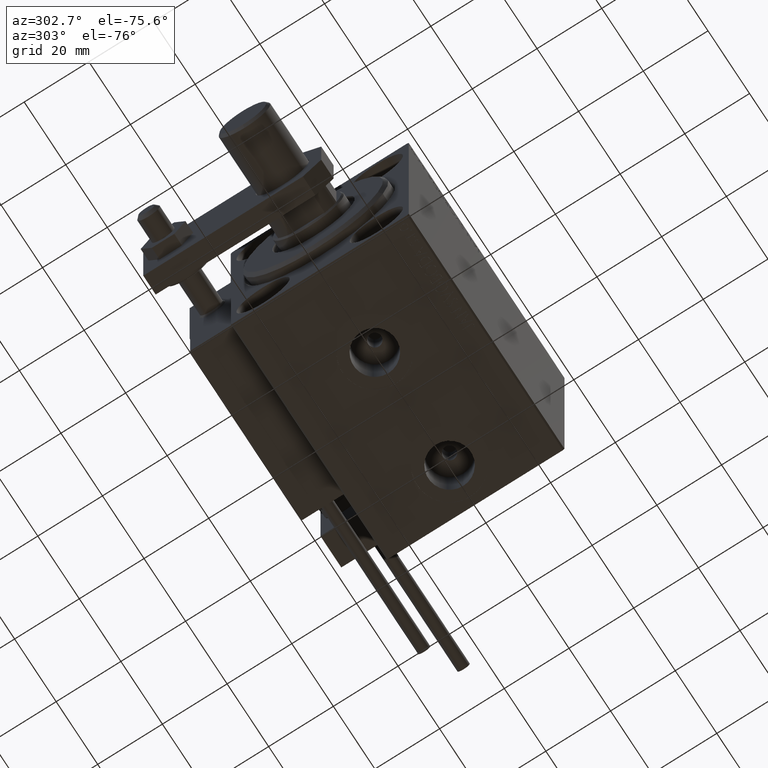
[diagram: clean part render]
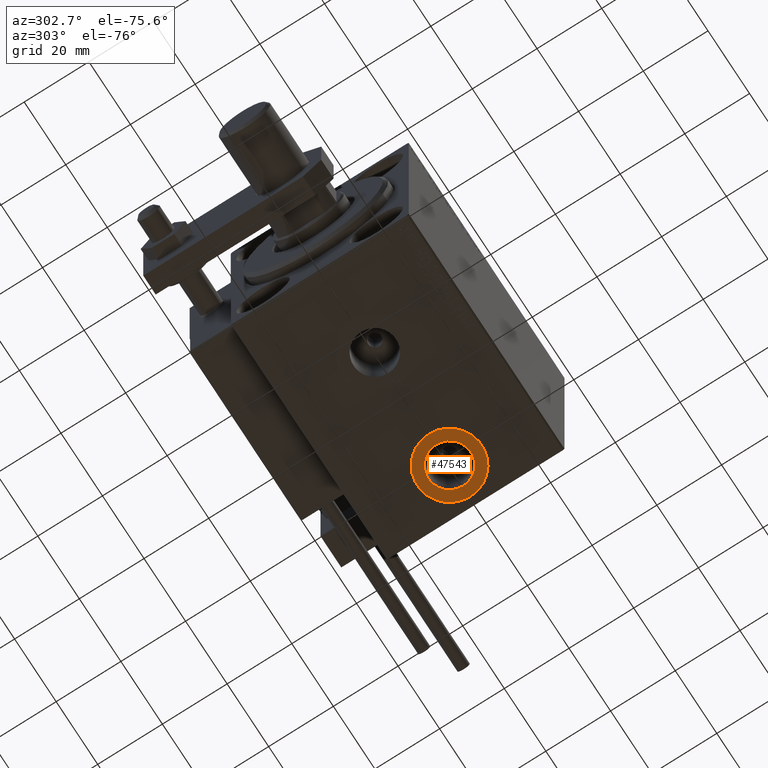
[diagram: same view with one face highlighted and labeled with its STEP entity id]
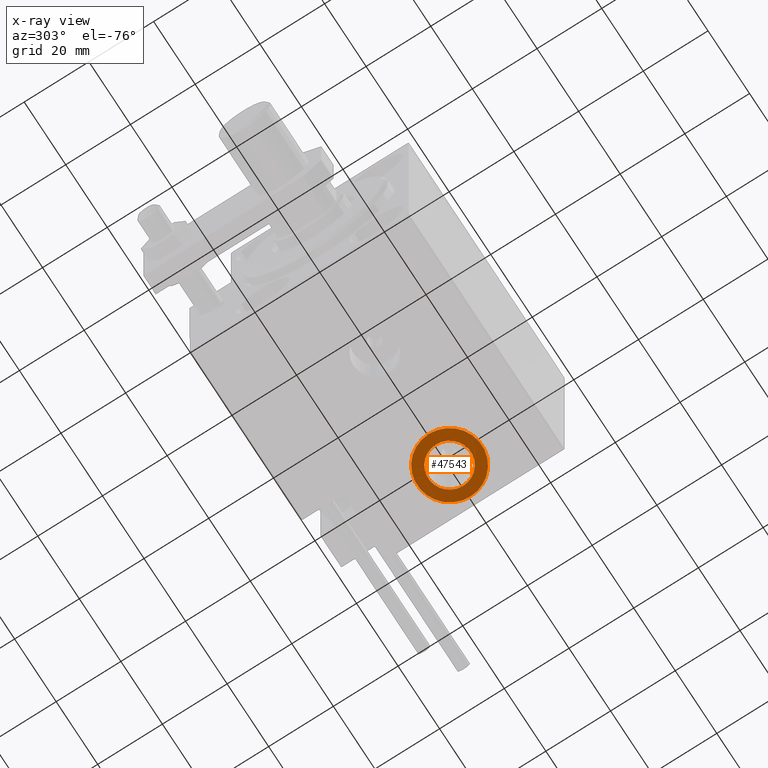
[diagram: x-ray of the same camera — body ghosted, the highlighted face saturated]
A machine part, auxiliary view. The second image highlights one B-rep face of the part: STEP entity #47543.
The next image is the same camera in x-ray: the body ghosted, the highlighted face saturated — about 0% of this face is hidden behind the body in this view.
In plain terms, the highlighted planar face has unit normal (0, 0, -1).
Its self-contained STEP definition (entity closure, byte-faithful):
#3450 = EDGE_LOOP ( 'NONE', ( #16260, #11096 ) ) ;
#7136 = DIRECTION ( 'NONE',  ( 0.000000000000000000, 0.000000000000000000, -1.000000000000000000 ) ) ;
#8334 = CIRCLE ( 'NONE', #10764, 10.00000000000000178 ) ;
#9057 = EDGE_CURVE ( 'NONE', #13284, #36991, #26329, .T. ) ;
#9872 = CARTESIAN_POINT ( 'NONE',  ( 62.49999999999999289, -7.523326685254106813E-15, -37.39999999999999858 ) ) ;
#10722 = EDGE_CURVE ( 'NONE', #28546, #31398, #8334, .T. ) ;
#10764 = AXIS2_PLACEMENT_3D ( 'NONE', #36490, #17199, #48036 ) ;
#10788 = ORIENTED_EDGE ( 'NONE', *, *, #9057, .F. ) ;
#10977 = PLANE ( 'NONE',  #50452 ) ;
#11096 = ORIENTED_EDGE ( 'NONE', *, *, #10722, .T. ) ;
#13284 = VERTEX_POINT ( 'NONE', #35842 ) ;
#14188 = CARTESIAN_POINT ( 'NONE',  ( 52.49999999999999289, -7.523326685254106813E-15, -37.39999999999999858 ) ) ;
#14335 = DIRECTION ( 'NONE',  ( -1.000000000000000000, 0.000000000000000000, -0.000000000000000000 ) ) ;
#16260 = ORIENTED_EDGE ( 'NONE', *, *, #20755, .T. ) ;
#17199 = DIRECTION ( 'NONE',  ( 0.000000000000000000, 0.000000000000000000, -1.000000000000000000 ) ) ;
#18421 = CARTESIAN_POINT ( 'NONE',  ( 62.49999999999999289, -7.523326685254106813E-15, -37.39999999999999858 ) ) ;
#19300 = AXIS2_PLACEMENT_3D ( 'NONE', #26395, #49755, #38714 ) ;
#19509 = CIRCLE ( 'NONE', #26915, 6.580000000000002736 ) ;
#20755 = EDGE_CURVE ( 'NONE', #31398, #28546, #29149, .T. ) ;
#24367 = DIRECTION ( 'NONE',  ( 0.000000000000000000, 0.000000000000000000, -1.000000000000000000 ) ) ;
#26329 = CIRCLE ( 'NONE', #42440, 6.580000000000002736 ) ;
#26395 = CARTESIAN_POINT ( 'NONE',  ( 62.49999999999999289, -7.523326685254106813E-15, -37.39999999999999858 ) ) ;
#26915 = AXIS2_PLACEMENT_3D ( 'NONE', #47217, #24367, #43372 ) ;
#28546 = VERTEX_POINT ( 'NONE', #40283 ) ;
#29149 = CIRCLE ( 'NONE', #19300, 10.00000000000000178 ) ;
#29721 = FACE_OUTER_BOUND ( 'NONE', #3450, .T. ) ;
#29908 = EDGE_CURVE ( 'NONE', #36991, #13284, #19509, .T. ) ;
#30397 = DIRECTION ( 'NONE',  ( -1.000000000000000000, 0.000000000000000000, 0.000000000000000000 ) ) ;
#31398 = VERTEX_POINT ( 'NONE', #14188 ) ;
#32259 = CARTESIAN_POINT ( 'NONE',  ( 55.91999999999998749, -7.523326685254106813E-15, -37.39999999999999858 ) ) ;
#34265 = DIRECTION ( 'NONE',  ( 0.000000000000000000, 0.000000000000000000, -1.000000000000000000 ) ) ;
#35842 = CARTESIAN_POINT ( 'NONE',  ( 69.07999999999999829, -6.717509091415148559E-15, -37.39999999999999858 ) ) ;
#36490 = CARTESIAN_POINT ( 'NONE',  ( 62.49999999999999289, -7.523326685254106813E-15, -37.39999999999999858 ) ) ;
#36991 = VERTEX_POINT ( 'NONE', #32259 ) ;
#37618 = EDGE_LOOP ( 'NONE', ( #37684, #10788 ) ) ;
#37684 = ORIENTED_EDGE ( 'NONE', *, *, #29908, .F. ) ;
#38714 = DIRECTION ( 'NONE',  ( -1.000000000000000000, 0.000000000000000000, 0.000000000000000000 ) ) ;
#40283 = CARTESIAN_POINT ( 'NONE',  ( 72.50000000000000000, -6.298679886106752964E-15, -37.39999999999999858 ) ) ;
#42440 = AXIS2_PLACEMENT_3D ( 'NONE', #9872, #34265, #30397 ) ;
#43372 = DIRECTION ( 'NONE',  ( -1.000000000000000000, 0.000000000000000000, 0.000000000000000000 ) ) ;
#46148 = FACE_BOUND ( 'NONE', #37618, .T. ) ;
#47217 = CARTESIAN_POINT ( 'NONE',  ( 62.49999999999999289, -7.523326685254106813E-15, -37.39999999999999858 ) ) ;
#47543 = ADVANCED_FACE ( 'NONE', ( #46148, #29721 ), #10977, .T. ) ;
#48036 = DIRECTION ( 'NONE',  ( -1.000000000000000000, 0.000000000000000000, 0.000000000000000000 ) ) ;
#49755 = DIRECTION ( 'NONE',  ( 0.000000000000000000, 0.000000000000000000, -1.000000000000000000 ) ) ;
#50452 = AXIS2_PLACEMENT_3D ( 'NONE', #18421, #7136, #14335 ) ;